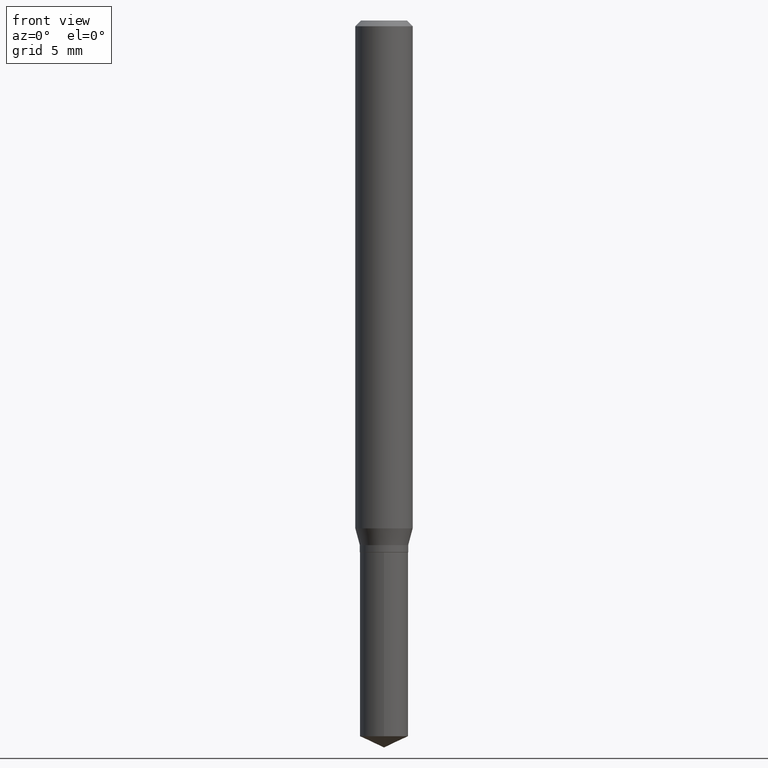
[diagram: clean part render]
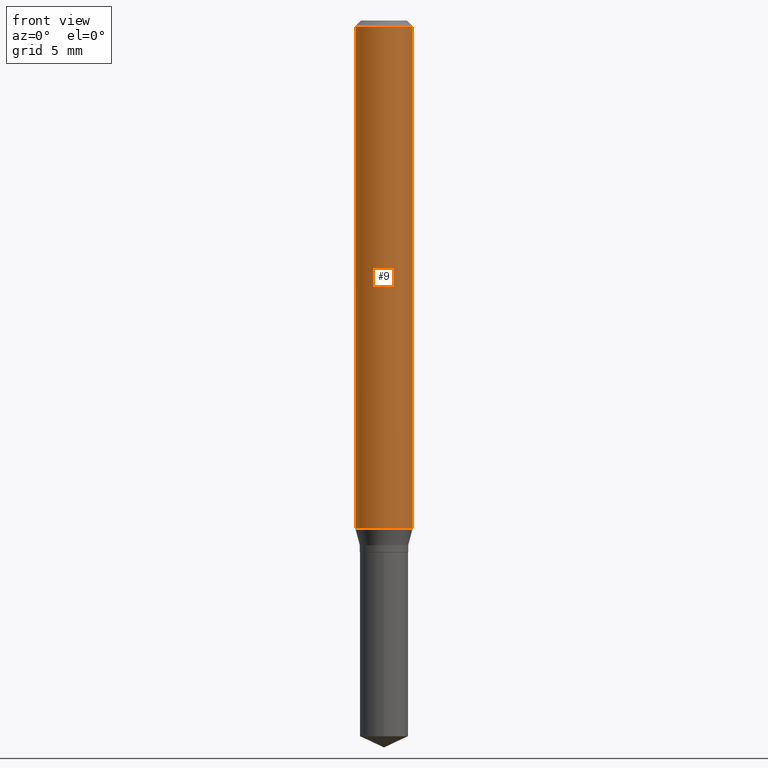
[diagram: same view with one face highlighted and labeled with its STEP entity id]
A machine part, front view. The second image highlights one B-rep face of the part: STEP entity #9.
In plain terms, the highlighted cylindrical surface (edge-blend (fillet) strip) has radius 1.4999 mm, axis along (-0, 0, 1).
Its self-contained STEP definition (entity closure, byte-faithful):
#1 = CARTESIAN_POINT ( 'NONE',  ( 0.05905000000000013016, -4.061216131342702061E-15, -1.045078530029987407 ) ) ;
#9 = ADVANCED_FACE ( 'NONE', ( #257 ), #486, .T. ) ;
#14 = CIRCLE ( 'NONE', #217, 0.05905000000000013016 ) ;
#22 = AXIS2_PLACEMENT_3D ( 'NONE', #489, #342, #443 ) ;
#26 = VERTEX_POINT ( 'NONE', #1 ) ;
#27 = LINE ( 'NONE', #466, #395 ) ;
#85 = AXIS2_PLACEMENT_3D ( 'NONE', #222, #147, #337 ) ;
#89 = DIRECTION ( 'NONE',  ( 1.000000000000000000, -6.982962677686265133E-15, 0.000000000000000000 ) ) ;
#92 = DIRECTION ( 'NONE',  ( -2.445468806185136877E-29, 3.491481338843145188E-15, 1.000000000000000000 ) ) ;
#93 = ORIENTED_EDGE ( 'NONE', *, *, #468, .F. ) ;
#95 = DIRECTION ( 'NONE',  ( -2.445468806185136877E-29, 3.491481338843145188E-15, 1.000000000000000000 ) ) ;
#96 = VERTEX_POINT ( 'NONE', #114 ) ;
#104 = EDGE_LOOP ( 'NONE', ( #177, #475, #398, #93 ) ) ;
#114 = CARTESIAN_POINT ( 'NONE',  ( -0.05905000000000013016, -3.229296699758987253E-15, -1.045078530029987407 ) ) ;
#131 = LINE ( 'NONE', #431, #347 ) ;
#147 = DIRECTION ( 'NONE',  ( -2.445468806185136597E-29, 3.491481338843145583E-15, 1.000000000000000000 ) ) ;
#162 = CARTESIAN_POINT ( 'NONE',  ( 2.555706945202150538E-29, -3.648872185225327141E-15, -1.045078530029987407 ) ) ;
#177 = ORIENTED_EDGE ( 'NONE', *, *, #308, .F. ) ;
#194 = CIRCLE ( 'NONE', #22, 0.05904999999999999832 ) ;
#217 = AXIS2_PLACEMENT_3D ( 'NONE', #162, #315, #89 ) ;
#218 = VERTEX_POINT ( 'NONE', #388 ) ;
#222 = CARTESIAN_POINT ( 'NONE',  ( 0.000000000000000000, 0.000000000000000000, 0.000000000000000000 ) ) ;
#243 = EDGE_CURVE ( 'NONE', #96, #26, #14, .T. ) ;
#257 = FACE_OUTER_BOUND ( 'NONE', #104, .T. ) ;
#308 = EDGE_CURVE ( 'NONE', #96, #218, #27, .T. ) ;
#315 = DIRECTION ( 'NONE',  ( -2.445468806185136597E-29, 3.491481338843145583E-15, 1.000000000000000000 ) ) ;
#326 = VERTEX_POINT ( 'NONE', #327 ) ;
#327 = CARTESIAN_POINT ( 'NONE',  ( 0.05904999999999999832, -4.535783407291118600E-16, -0.01181000000000006871 ) ) ;
#337 = DIRECTION ( 'NONE',  ( 1.000000000000000000, -6.982962677686266711E-15, 4.876176775795936353E-29 ) ) ;
#342 = DIRECTION ( 'NONE',  ( -2.445468806185136597E-29, 3.491481338843145583E-15, 1.000000000000000000 ) ) ;
#347 = VECTOR ( 'NONE', #92, 39.37007874015748143 ) ;
#383 = EDGE_CURVE ( 'NONE', #26, #326, #131, .T. ) ;
#388 = CARTESIAN_POINT ( 'NONE',  ( -0.05904999999999999832, -1.425477804452191956E-15, -0.01181000000000006871 ) ) ;
#395 = VECTOR ( 'NONE', #95, 39.37007874015748143 ) ;
#398 = ORIENTED_EDGE ( 'NONE', *, *, #383, .T. ) ;
#431 = CARTESIAN_POINT ( 'NONE',  ( 0.05905000000000006771, -4.123439461173745257E-16, 2.879382386107503723E-30 ) ) ;
#443 = DIRECTION ( 'NONE',  ( 1.000000000000000000, -6.982962677686266711E-15, 0.000000000000000000 ) ) ;
#466 = CARTESIAN_POINT ( 'NONE',  ( -0.05905000000000006771, 4.195754854663396409E-16, -2.904631170795525045E-30 ) ) ;
#468 = EDGE_CURVE ( 'NONE', #218, #326, #194, .T. ) ;
#475 = ORIENTED_EDGE ( 'NONE', *, *, #243, .T. ) ;
#486 = CYLINDRICAL_SURFACE ( 'NONE', #85, 0.05905000000000006771 ) ;
#489 = CARTESIAN_POINT ( 'NONE',  ( 2.888098660104663328E-31, -4.123439461173779030E-17, -0.01181000000000006871 ) ) ;